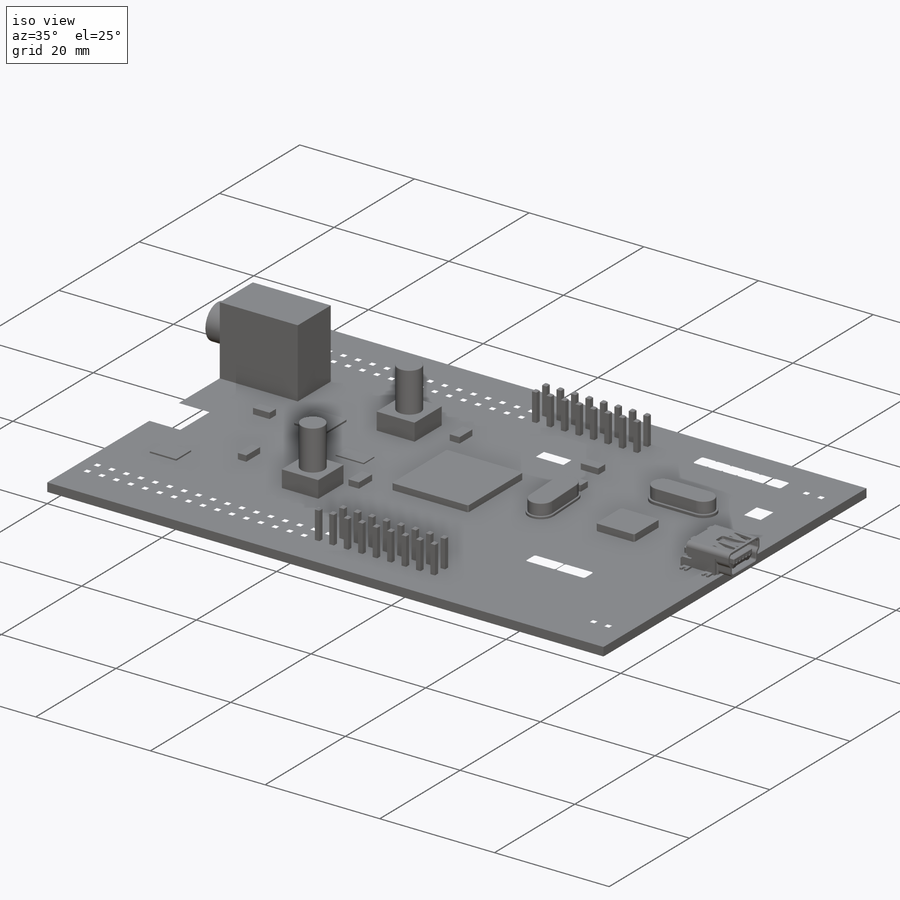
[diagram: iso view]
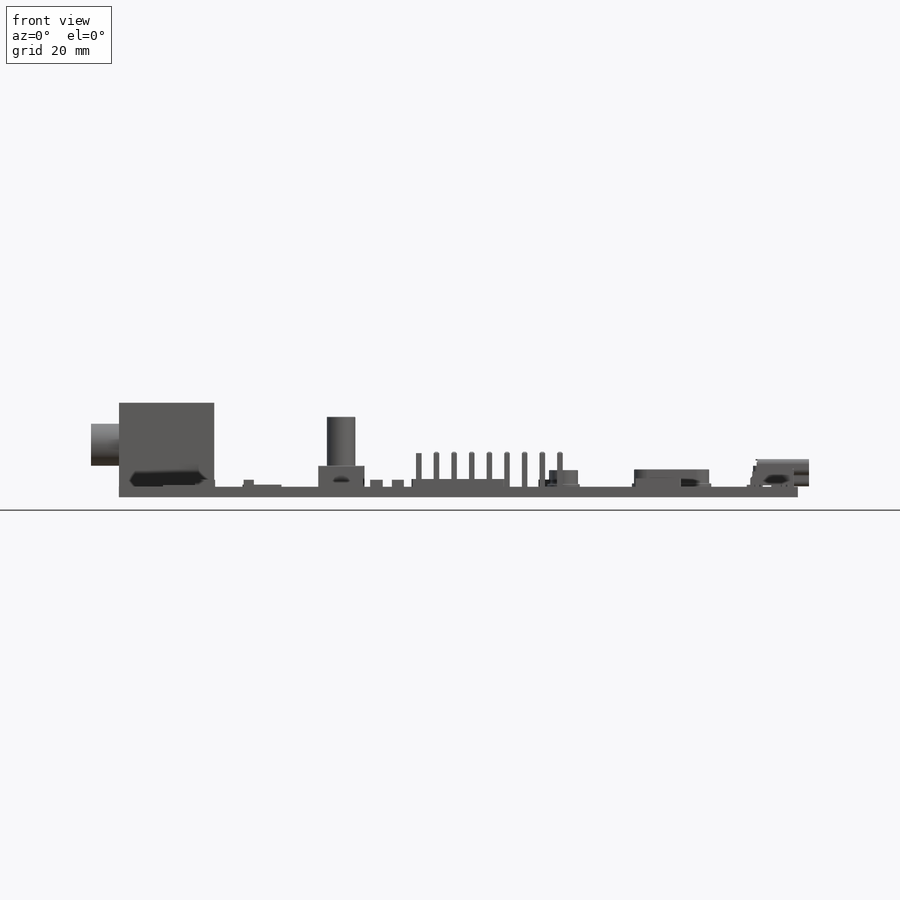
[diagram: front view]
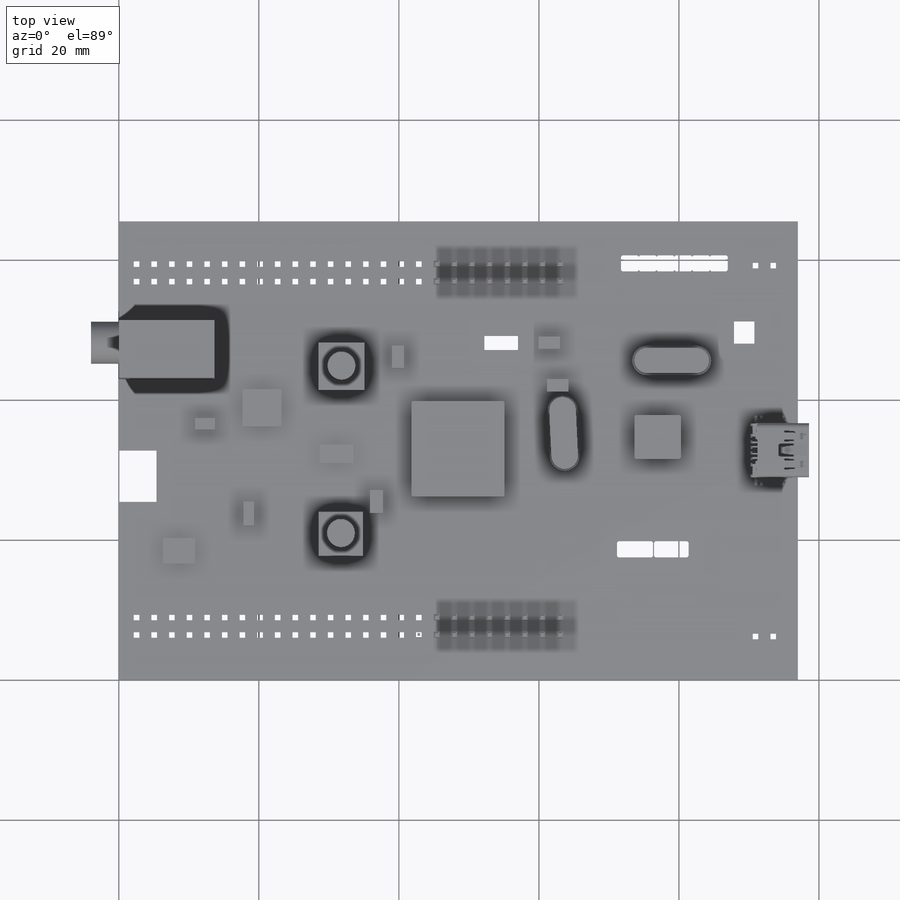
[diagram: top view]
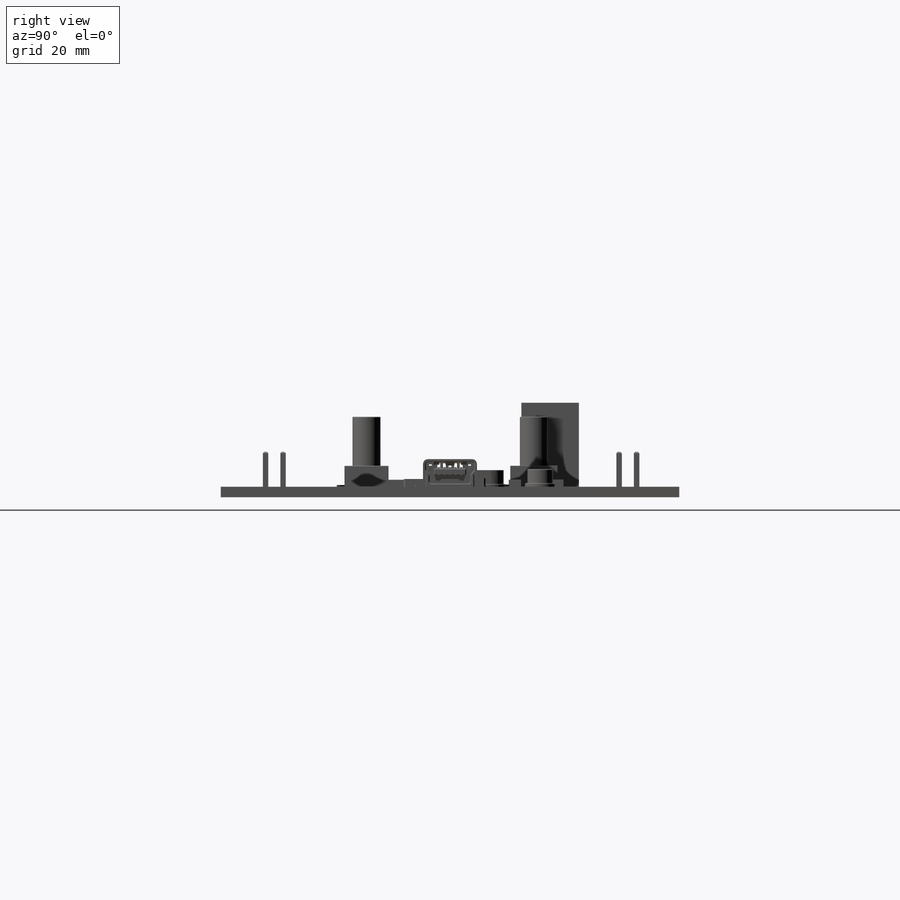
[diagram: right view]
SOLIDWORKS PART (.sldprt)
format: sldprt  version: not decoded by parser v0  size: 12,929,024 bytes
history: native  units: mm
features: sketch x31, extrude x27, fillet x9, pattern_linear x9, chamfer x6, cut_extrude x4, move_body x3, material x1 + 1 further entry (+17 scaffold rows collapsed; 4 parser-record rows omitted)
feature tree (112):
  scaffold x17  (default folders/planes/origin — collapsed)
  material  "Material <not specified>"
  sketch  "Sketch1"  dims[D1=97.0mm D2=65.5mm]
  extrude  "Boss-Extrude1"  Depth=1.5mm
  sketch  "Sketch2"  dims[D1=25.7mm D2=41.9mm D3=~13.655036mm D4=~13.295783mm]
  extrude  "Boss-Extrude3"  Depth=1.1mm
  sketch  "Sketch3"  dims[c1.D2=~2.171539mm c1.D1=32.0mm c1.D3=~31.164375mm c1.D4=~31.460452mm c1.D5=~33.33366mm c1.D6=~33.481699mm c1.D7=~33.629737mm c1.D8=~35.502945mm c1.D9=~35.799023mm c2.D3=~31.164375mm c2.D4=~31.460452mm c2.D5=~33.33366mm]
  extrude  "Boss-Extrude4"  Depth=0.4mm
  fillet  "Fillet2"  Radius=0.1mm
  sketch  "Sketch5"  dims[D1=0.15mm]
  extrude  "Boss-Extrude5"  Depth=2mm
  fillet  "Fillet3"  Radius=0.1mm
  sketch  "Sketch6"  dims[c1.D2=~2.123815mm c1.D1=14.5mm c1.D3=~20.31617mm c1.D4=~23.858085mm c2.D3=~20.31617mm c2.D4=~5.813003mm]
  extrude  "Boss-Extrude6"  Depth=0.5mm
  fillet  "Fillet4"  Radius=0.1mm
  sketch  "Sketch7"  dims[D1=0.2mm]
  extrude  "Boss-Extrude7"  Depth=2mm
  fillet  "Fillet5"  Radius=0.1mm
  sketch  "Sketch8"  dims[D1=27.7mm D2=~6.260592mm D3=~73.615788mm D4=~80.286911mm]
  extrude  "Boss-Extrude8"  Depth=1.2mm
  sketch  "Sketch9"  dims[D1=~17.65665mm D2=~23.237783mm D3=~36.135926mm D4=~41.529458mm]
  extrude  "Boss-Extrude9"  Depth=0.3mm
  sketch  "Sketch10"  dims[D1=~28.63563mm D2=~33.524459mm D3=~30.939909mm D4=~33.599304mm]
  extrude  "Boss-Extrude10"  Depth=0.2mm
  sketch  "Sketch11"  dims[D1=~6.764663mm D2=~11.388531mm D3=~19.527867mm D4=~23.230799mm]
  extrude  "Boss-Extrude11"  Depth=0.25mm
  sketch  "Sketch12"  dims[D1=~77.709028mm D2=~79.186363mm D3=~22.02178mm D4=~25.456105mm D5=~32.766801mm D6=~33.996219mm D7=~35.867299mm D8=~37.055651mm D9=~56.282669mm D10=~58.005559mm D11=~59.312002mm D12=~61.114352mm D13=~83.256615mm D14=~86.151437mm D15=~23.788838mm D16=~27.098128mm D17=~35.743322mm D18=~37.335495mm D19=~41.136054mm D20=~42.91884mm D21=~44.545696mm D22=~47.265833mm D23=~47.735046mm D24=~48.990246mm]
  extrude  "Boss-Extrude12"  Depth=1mm
  sketch  "Sketch13"  dims[D1=13.6mm D2=0.02mm D3=~42.948497mm D4=~51.159936mm]
  extrude  "Boss-Extrude14"  Depth=12mm
  sketch  "Sketch14"  dims[c1.D1=6.0mm c1.D2=6.0mm c1.D3=6.0mm c2.D2=6.0mm c2.D3=3.1mm]
  extrude  "Boss-Extrude15"  Depth=4mm
  sketch  "Sketch15"  dims[D1=3.5mm]
  cut_extrude  "Cut-Extrude2"  Depth=14mm
  chamfer  "Chamfer1"  Distance=0.5mm Angle=45deg
  sketch  "Sketch16"  dims[D1=5.0mm D2=0.01mm]
  cut_extrude  "Cut-Extrude3"  Depth=3mm
  sketch  "Sketch17"  dims[D1=~22.211784mm D2=~28.830136mm D3=~21.088623mm D4=~27.848425mm]
  extrude  "Boss-Extrude16"  Depth=3mm
  sketch  "Sketch18"  dims[D1=4.0mm]
  extrude  "Boss-Extrude17"  Depth=7mm
  fillet  "Fillet6"  Radius=0.1mm
  chamfer  "Chamfer2"  Distance=0.01mm Angle=45deg
  sketch  "Sketch19"  dims[D1=~28.535166mm D2=~34.888721mm D3=~17.674018mm D4=~23.966481mm]
  extrude  "Boss-Extrude18"  Depth=3mm
  fillet  "Fillet7"  Radius=0.1mm
  sketch  "Sketch20"  dims[D1=4.0mm]
  extrude  "Boss-Extrude19"  Depth=7mm
  fillet  "Fillet8"  Radius=0.1mm
  sketch  "Sketch21"  dims[D1=~56.343704mm D2=~57.136322mm D3=~13.477505mm D4=~14.261381mm]
  extrude  "Boss-Extrude20"  Depth=5mm
  chamfer  "Chamfer4"  Distance=0.2mm Angle=45deg
  chamfer  "Chamfer5"  Distance=0.2mm Angle=45deg
  pattern_linear  "LPattern6"  Count1=2 Count2=1 Spacing1=2.5mm Spacing2=20mm
  pattern_linear  "LPattern7"  Count1=2 Count2=1 Spacing1=50.5mm Spacing2=20mm
  pattern_linear  "LPattern8"  Count1=25 Count2=1 Spacing1=2.52mm Spacing2=20mm
  sketch  "Sketch22"  dims[c1.D1=1.24mm c1.D2=2.52mm c1.D3=4.0mm c1.D4=~0.558475mm c1.D5=~3.441525mm c2.D4=~0.558475mm]
  extrude  "Boss-Extrude21"  Depth=2.5mm
  pattern_linear  "LPattern10"  Count1=25 Count2=1 Spacing1=2.52mm Spacing2=20mm
  pattern_linear  "LPattern13"  Count1=2 Count2=1 Spacing1=50.52mm Spacing2=20mm
  "USB_Mini_B_SMD_buchse"
  parser-record x4  (decoder bookkeeping rows leaked as tree rows — omitted from the tree; the rows remain in map.json)
  move_body  "Body-Move/Copy1"
  move_body  "Body-Move/Copy2"
  move_body  "Body-Move/Copy3"
  sketch  "Sketch24"  dims[c1.D1=1.0mm c1.D2=1.0mm c2.D1=~70.478207mm c2.D2=~70.547821mm c2.D3=~53.08791mm c2.D4=~54.08791mm c3.D3=~53.08791mm c3.D1=0.79mm c3.D2=0.79mm c4.D3=23.6mm c4.D4=5.6mm]
  extrude  "Boss-Extrude22"  Depth=7mm
  chamfer  "Chamfer6"  Distance=0.2mm Angle=45deg
  pattern_linear  "LPattern14"  Count1=6 Count2=1 Spacing1=2.54mm Spacing2=20mm
  sketch  "Sketch25"  dims[D1=1.27mm D2=2.54mm D3=2.3mm D4=1.15mm]
  extrude  "Boss-Extrude23"  Depth=1.7mm
  pattern_linear  "LPattern15"  Count1=6 Count2=1 Spacing1=2.54mm Spacing2=20mm
  sketch  "Sketch26"  dims[D9=0.1mm D1=~50.081351mm D2=~50.784773mm D3=~54.095286mm D4=~54.888543mm D5=~41.113417mm D6=~41.524363mm D7=~42.566628mm D8=~43.124741mm]
  extrude  "Boss-Extrude24"  Depth=7mm
  sketch  "Sketch27"  dims[D1=~69.030294mm D2=~74.172434mm D3=~11.495446mm D4=~13.787725mm D7=0.2mm D5=~74.320378mm D6=~79.263027mm]
  extrude  "Boss-Extrude25"  Depth=7mm
  sketch  "Sketch28"
  extrude  "Boss-Extrude26"  Depth=2mm
  sketch  "Sketch29"  dims[D1=~2.438643mm D2=~1.455907mm D3=~1.579814mm]
  cut_extrude  "Cut-Extrude4"  Depth=0.2mm
  sketch  "Sketch31"
  extrude  "Boss-Extrude27"  Depth=0.01mm
  sketch  "Sketch32"  dims[D1=0.2mm D2=~5.575107mm D3=~7.321671mm D4=~25.426475mm]
  extrude  "Boss-Extrude28"  Depth=2mm
  fillet  "Fillet10"  Radius=0.2mm
  fillet  "Fillet11"  Radius=0.2mm
  sketch  "Sketch35"  dims[D5=0.1mm D1=0.2mm D2=0.2mm D3=0.3mm D4=~0.101795mm D6=1.5mm D7=1.5mm D8=1.0mm D9=0.15mm]
  cut_extrude  "Cut-Extrude5"  Depth=4mm
  sketch  "Sketch36"  dims[D1=0.79mm D2=0.79mm D3=5.8mm D4=~3.118867mm]
  extrude  "Boss-Extrude29"  Depth=4mm
  chamfer  "Chamfer7"  Distance=0.2mm Angle=45deg
  pattern_linear  "LPattern16"  Count1=2 Count2=1 Spacing1=2.54mm Spacing2=20mm
  pattern_linear  "LPattern17"  Count1=2 Count2=1 Spacing1=52.99mm Spacing2=20mm
decode coverage: 84 of 89 modeling features carry decoded parameters; 1 rows unclassified (native names shown)
note: ~ marks probable driven/reference dimensions
note: suppression state not decoded; provenance and decode notes live in map.json
